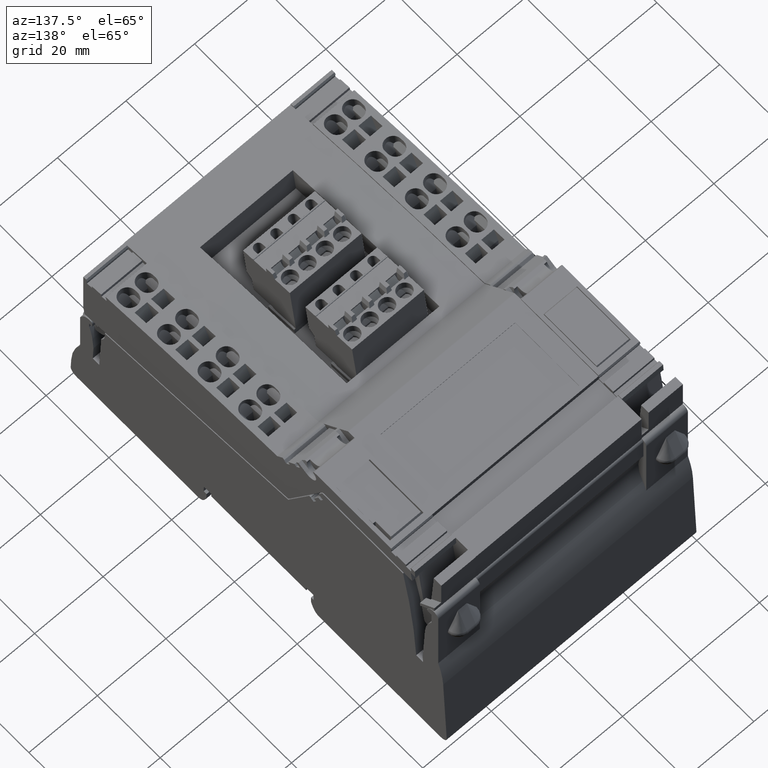
[diagram: clean part render]
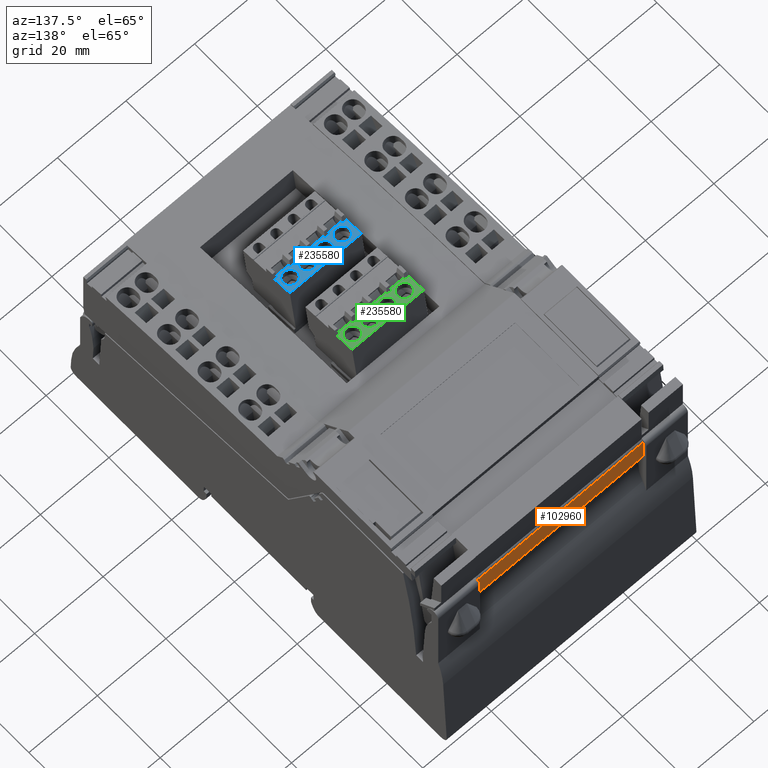
[diagram: same view with three faces highlighted in distinct colors, each labeled with its STEP entity id]
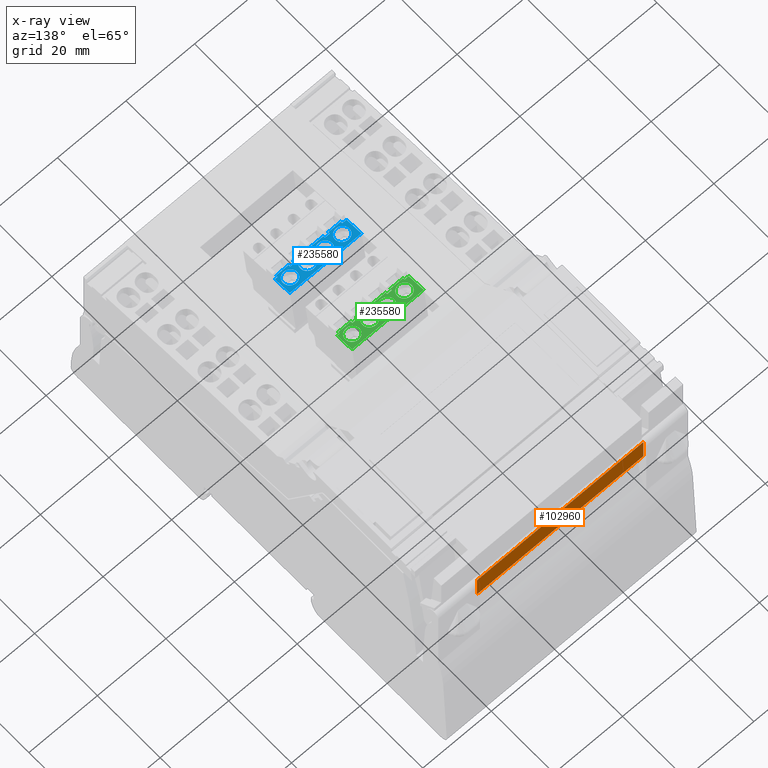
[diagram: x-ray of the same camera — body ghosted, the three highlighted faces saturated]
A machine part, auxiliary view with three faces highlighted in distinct colors.
The next image is the same camera in x-ray (body ghosted, the three faces saturated) — at least one of them is partly hidden behind the body in this view.
Their STEP definitions:

[orange] entity #102960 — the highlighted planar face has unit normal (0, 1, 0).
#18030=CARTESIAN_POINT('',(-125.591351313915,-73.4687096177443,46.8));
#18040=VERTEX_POINT('',#18030);
#18070=CARTESIAN_POINT('',(-125.591351313915,-0.0366387028802251,46.8));
#18080=DIRECTION('',(0.,1.,0.));
#18090=VECTOR('',#18080,1.);
#18100=LINE('',#18070,#18090);
#18110=CARTESIAN_POINT('',(-125.591351313915,-66.3046367892707,46.8));
#18120=VERTEX_POINT('',#18110);
#18130=EDGE_CURVE('',#18040,#18120,#18100,.T.);
#102660=CARTESIAN_POINT('',(-125.591351313915,-73.4687096177443,
-1.79999999998863));
#102670=DIRECTION('',(-1.,-4.04532634263815E-107,-1.04009420822853E-45))
;
#102680=DIRECTION('',(0.,-1.,3.88938454866321E-62));
#102690=AXIS2_PLACEMENT_3D('',#102660,#102670,#102680);
#102700=PLANE('',#102690);
#102710=CARTESIAN_POINT('',(-125.591351313915,-66.3046367892707,
46.800003));
#102720=DIRECTION('',(0.,0.,-1.));
#102730=VECTOR('',#102720,1.);
#102740=LINE('',#102710,#102730);
#102750=CARTESIAN_POINT('',(-125.591351313915,-66.3046367892707,
-1.80000000000002));
#102760=VERTEX_POINT('',#102750);
#102770=EDGE_CURVE('',#18120,#102760,#102740,.T.);
#102780=ORIENTED_EDGE('',*,*,#102770,.T.);
#102790=ORIENTED_EDGE('',*,*,#18130,.T.);
#102800=CARTESIAN_POINT('',(-125.591351313915,-73.4687096177443,
46.7999999999886));
#102810=DIRECTION('',(0.,0.,-1.));
#102820=VECTOR('',#102810,1.);
#102830=LINE('',#102800,#102820);
#102840=CARTESIAN_POINT('',(-125.591351313915,-73.4687096177443,
-1.80000000000002));
#102850=VERTEX_POINT('',#102840);
#102860=EDGE_CURVE('',#18040,#102850,#102830,.T.);
#102870=ORIENTED_EDGE('',*,*,#102860,.F.);
#102880=CARTESIAN_POINT('',(-125.591351313915,-0.0366387028802304,
-1.80000000000002));
#102890=DIRECTION('',(0.,1.,-3.88938454866321E-62));
#102900=VECTOR('',#102890,1.);
#102910=LINE('',#102880,#102900);
#102920=EDGE_CURVE('',#102850,#102760,#102910,.T.);
#102930=ORIENTED_EDGE('',*,*,#102920,.F.);
#102940=EDGE_LOOP('',(#102930,#102870,#102790,#102780));
#102950=FACE_OUTER_BOUND('',#102940,.T.);
#102960=ADVANCED_FACE('',(#102950),#102700,.T.);

[blue] entity #235580 — the highlighted planar face has unit normal (-0, -0.1279, 0.9918).
#232040=CARTESIAN_POINT('',(32.3206387993846,14.7575204980662,
5.75999999999998));
#232050=VERTEX_POINT('',#232040);
#232220=CARTESIAN_POINT('',(32.3206387993846,14.7575204980662,
4.37999999999999));
#232230=VERTEX_POINT('',#232220);
#232260=CARTESIAN_POINT('',(32.3206387993846,14.7575204980662,0.1));
#232270=DIRECTION('',(0.,0.,-1.));
#232280=VECTOR('',#232270,1.);
#232290=LINE('',#232260,#232280);
#232300=EDGE_CURVE('',#232050,#232230,#232290,.T.);
#233360=CARTESIAN_POINT('',(32.3206387993846,11.89692,15.003915));
#233370=DIRECTION('',(1.,3.5527136788005E-15,-0.));
#233380=DIRECTION('',(-3.5527136788005E-15,1.,0.));
#233390=AXIS2_PLACEMENT_3D('',#233360,#233370,#233380);
#233400=PLANE('',#233390);
#233410=CARTESIAN_POINT('',(32.3206387993846,13.5844494832834,
9.45999999999999));
#233420=DIRECTION('',(-3.5527136788005E-15,1.,0.));
#233430=VECTOR('',#233420,1.);
#233440=LINE('',#233410,#233430);
#233450=CARTESIAN_POINT('',(32.3206387993846,14.7575204980662,
9.45999999999999));
#233460=VERTEX_POINT('',#233450);
#233470=CARTESIAN_POINT('',(32.3206387993846,15.2637511150017,
9.45999999999999));
#233480=VERTEX_POINT('',#233470);
#233490=EDGE_CURVE('',#233460,#233480,#233440,.T.);
#233500=ORIENTED_EDGE('',*,*,#233490,.F.);
#233510=CARTESIAN_POINT('',(32.3206387993846,15.2637511150017,10.26));
#233520=DIRECTION('',(2.95586394818516E-46,-8.44455424549706E-32,-1.));
#233530=VECTOR('',#233520,1.);
#233540=LINE('',#233510,#233530);
#233550=CARTESIAN_POINT('',(32.3206387993846,15.2637511150017,
5.75999999999998));
#233560=VERTEX_POINT('',#233550);
#233570=EDGE_CURVE('',#233480,#233560,#233540,.T.);
#233580=ORIENTED_EDGE('',*,*,#233570,.F.);
#233590=CARTESIAN_POINT('',(32.3206387993846,13.5844494832834,
5.75999999999998));
#233600=DIRECTION('',(3.5527136788005E-15,-1.,-9.47390314346782E-16));
#233610=VECTOR('',#233600,1.);
#233620=LINE('',#233590,#233610);
#233630=EDGE_CURVE('',#233560,#232050,#233620,.T.);
#233640=ORIENTED_EDGE('',*,*,#233630,.F.);
#233650=ORIENTED_EDGE('',*,*,#232300,.F.);
#233660=CARTESIAN_POINT('',(32.3206387993846,13.5844494832834,
4.37999999999999));
#233670=DIRECTION('',(3.5527136788005E-15,-1.,0.));
#233680=VECTOR('',#233670,1.);
#233690=LINE('',#233660,#233680);
#233700=CARTESIAN_POINT('',(32.3206387993846,15.2637511150017,
4.37999999999999));
#233710=VERTEX_POINT('',#233700);
#233720=EDGE_CURVE('',#233710,#232230,#233690,.T.);
#233730=ORIENTED_EDGE('',*,*,#233720,.T.);
#233740=CARTESIAN_POINT('',(32.3206387993846,15.2637511150016,10.26));
#233750=DIRECTION('',(2.83989925879564E-29,-7.7958473003036E-15,-1.));
#233760=VECTOR('',#233750,1.);
#233770=LINE('',#233740,#233760);
#233780=CARTESIAN_POINT('',(32.3206387993846,15.2637511150017,
0.679999999999992));
#233790=VERTEX_POINT('',#233780);
#233800=EDGE_CURVE('',#233710,#233790,#233770,.T.);
#233810=ORIENTED_EDGE('',*,*,#233800,.F.);
#233820=CARTESIAN_POINT('',(32.3206387993846,13.5844494832834,
0.679999999999993));
#233830=DIRECTION('',(0.,1.,8.44455409856027E-32));
#233840=VECTOR('',#233830,1.);
#233850=LINE('',#233820,#233840);
#233860=CARTESIAN_POINT('',(32.3206387993846,14.7575204980662,
0.679999999999984));
#233870=VERTEX_POINT('',#233860);
#233880=EDGE_CURVE('',#233870,#233790,#233850,.T.);
#233890=ORIENTED_EDGE('',*,*,#233880,.T.);
#233900=CARTESIAN_POINT('',(32.3206387993846,14.7575204980662,0.1));
#233910=DIRECTION('',(0.,0.,-1.));
#233920=VECTOR('',#233910,1.);
#233930=LINE('',#233900,#233920);
#233940=CARTESIAN_POINT('',(32.3206387993846,14.7575204980662,
-0.700000000000006));
#233950=VERTEX_POINT('',#233940);
#233960=EDGE_CURVE('',#233870,#233950,#233930,.T.);
#233970=ORIENTED_EDGE('',*,*,#233960,.F.);
#233980=CARTESIAN_POINT('',(32.3206387993846,13.5844494832834,
-0.700000000000006));
#233990=DIRECTION('',(0.,-1.,0.));
#234000=VECTOR('',#233990,1.);
#234010=LINE('',#233980,#234000);
#234020=CARTESIAN_POINT('',(32.3206387993846,15.2637511150015,
-0.700000000000006));
#234030=VERTEX_POINT('',#234020);
#234040=EDGE_CURVE('',#234030,#233950,#234010,.T.);
#234050=ORIENTED_EDGE('',*,*,#234040,.T.);
#234060=CARTESIAN_POINT('',(32.3206387993846,15.2637511150017,
0.0999999999999943));
#234070=DIRECTION('',(2.95586394818516E-46,-8.44455424549706E-32,-1.));
#234080=VECTOR('',#234070,1.);
#234090=LINE('',#234060,#234080);
#234100=CARTESIAN_POINT('',(32.3206387993846,15.2637511150017,
-4.40000000000001));
#234110=VERTEX_POINT('',#234100);
#234120=EDGE_CURVE('',#234030,#234110,#234090,.T.);
#234130=ORIENTED_EDGE('',*,*,#234120,.F.);
#234140=CARTESIAN_POINT('',(32.3206387993846,13.5844494832834,
-4.40000000000001));
#234150=DIRECTION('',(0.,-1.,-8.44455409856027E-32));
#234160=VECTOR('',#234150,1.);
#234170=LINE('',#234140,#234160);
#234180=CARTESIAN_POINT('',(32.3206387993846,14.7575204980662,
-4.40000000000001));
#234190=VERTEX_POINT('',#234180);
#234200=EDGE_CURVE('',#234110,#234190,#234170,.T.);
#234210=ORIENTED_EDGE('',*,*,#234200,.F.);
#234220=CARTESIAN_POINT('',(32.3206387993846,14.7575204980662,0.1));
#234230=DIRECTION('',(0.,0.,-1.));
#234240=VECTOR('',#234230,1.);
#234250=LINE('',#234220,#234240);
#234260=CARTESIAN_POINT('',(32.3206387993846,14.7575204980662,-5.78));
#234270=VERTEX_POINT('',#234260);
#234280=EDGE_CURVE('',#234190,#234270,#234250,.T.);
#234290=ORIENTED_EDGE('',*,*,#234280,.F.);
#234300=CARTESIAN_POINT('',(32.3206387993846,13.5844494832834,-5.78));
#234310=DIRECTION('',(0.,-1.,0.));
#234320=VECTOR('',#234310,1.);
#234330=LINE('',#234300,#234320);
#234340=CARTESIAN_POINT('',(32.3206387993846,15.2637511150017,-5.78));
#234350=VERTEX_POINT('',#234340);
#234360=EDGE_CURVE('',#234350,#234270,#234330,.T.);
#234370=ORIENTED_EDGE('',*,*,#234360,.T.);
#234380=CARTESIAN_POINT('',(32.3206387993846,15.2637511150017,0.1));
#234390=DIRECTION('',(2.05051025445897E-16,-7.39557098644699E-32,-1.));
#234400=VECTOR('',#234390,1.);
#234410=LINE('',#234380,#234400);
#234420=CARTESIAN_POINT('',(32.3206387993846,15.2637511150017,-9.48));
#234430=VERTEX_POINT('',#234420);
#234440=EDGE_CURVE('',#234350,#234430,#234410,.T.);
#234450=ORIENTED_EDGE('',*,*,#234440,.F.);
#234460=CARTESIAN_POINT('',(32.3206387993846,13.5844494832834,-9.48));
#234470=DIRECTION('',(-3.5527136788005E-15,1.,9.47390314346782E-16));
#234480=VECTOR('',#234470,1.);
#234490=LINE('',#234460,#234480);
#234500=CARTESIAN_POINT('',(32.3206387993846,14.7575204980662,-9.48));
#234510=VERTEX_POINT('',#234500);
#234520=EDGE_CURVE('',#234510,#234430,#234490,.T.);
#234530=ORIENTED_EDGE('',*,*,#234520,.T.);
#234540=CARTESIAN_POINT('',(32.3206387993846,14.7575204980662,0.1));
#234550=DIRECTION('',(0.,0.,1.));
#234560=VECTOR('',#234550,1.);
#234570=LINE('',#234540,#234560);
#234580=CARTESIAN_POINT('',(32.3206387993846,14.7575204980662,-10.68));
#234590=VERTEX_POINT('',#234580);
#234600=EDGE_CURVE('',#234590,#234510,#234570,.T.);
#234610=ORIENTED_EDGE('',*,*,#234600,.T.);
#234620=CARTESIAN_POINT('',(32.3206387993846,13.5844494832834,-10.68));
#234630=DIRECTION('',(-3.5527136788005E-15,1.,0.));
#234640=VECTOR('',#234630,1.);
#234650=LINE('',#234620,#234640);
#234660=CARTESIAN_POINT('',(32.3206387993846,9.91375111500183,-10.68));
#234670=VERTEX_POINT('',#234660);
#234680=EDGE_CURVE('',#234670,#234590,#234650,.T.);
#234690=ORIENTED_EDGE('',*,*,#234680,.T.);
#234700=CARTESIAN_POINT('',(32.3206387993846,9.91375111500183,0.1));
#234710=DIRECTION('',(0.,0.,-1.));
#234720=VECTOR('',#234710,1.);
#234730=LINE('',#234700,#234720);
#234740=CARTESIAN_POINT('',(32.3206387993846,9.91375111500183,10.26));
#234750=VERTEX_POINT('',#234740);
#234760=EDGE_CURVE('',#234750,#234670,#234730,.T.);
#234770=ORIENTED_EDGE('',*,*,#234760,.T.);
#234780=CARTESIAN_POINT('',(32.3206387993846,13.5844494832834,10.26));
#234790=DIRECTION('',(3.5527136788005E-15,-1.,0.));
#234800=VECTOR('',#234790,1.);
#234810=LINE('',#234780,#234800);
#234820=CARTESIAN_POINT('',(32.3206387993846,14.7575204980662,10.26));
#234830=VERTEX_POINT('',#234820);
#234840=EDGE_CURVE('',#234830,#234750,#234810,.T.);
#234850=ORIENTED_EDGE('',*,*,#234840,.T.);
#234860=CARTESIAN_POINT('',(32.3206387993846,14.7575204980662,0.1));
#234870=DIRECTION('',(0.,0.,-1.));
#234880=VECTOR('',#234870,1.);
#234890=LINE('',#234860,#234880);
#234900=EDGE_CURVE('',#234830,#233460,#234890,.T.);
#234910=ORIENTED_EDGE('',*,*,#234900,.F.);
#234920=EDGE_LOOP('',(#234910,#234850,#234770,#234690,#234610,#234530,
#234450,#234370,#234290,#234210,#234130,#234050,#233970,#233890,#233810,
#233730,#233650,#233640,#233580,#233500));
#234930=FACE_OUTER_BOUND('',#234920,.T.);
#234940=CARTESIAN_POINT('',(32.3206387993846,12.7637511150017,-2.55));
#234950=DIRECTION('',(1.,3.5527136788005E-15,0.));
#234960=DIRECTION('',(-3.5527136788005E-15,1.,0.));
#234970=AXIS2_PLACEMENT_3D('',#234940,#234950,#234960);
#234980=CIRCLE('',#234970,2.);
#234990=CARTESIAN_POINT('',(32.3206387993846,14.7637511150017,-2.55));
#235000=VERTEX_POINT('',#234990);
#235010=CARTESIAN_POINT('',(32.3206387993846,10.7637511150017,-2.55));
#235020=VERTEX_POINT('',#235010);
#235030=EDGE_CURVE('',#235000,#235020,#234980,.T.);
#235040=ORIENTED_EDGE('',*,*,#235030,.F.);
#235050=EDGE_CURVE('',#235020,#235000,#234980,.T.);
#235060=ORIENTED_EDGE('',*,*,#235050,.F.);
#235070=EDGE_LOOP('',(#235060,#235040));
#235080=FACE_BOUND('',#235070,.T.);
#235090=CARTESIAN_POINT('',(32.3206387993846,12.7637511150017,2.53));
#235100=DIRECTION('',(1.,3.5527136788005E-15,0.));
#235110=DIRECTION('',(-3.5527136788005E-15,1.,0.));
#235120=AXIS2_PLACEMENT_3D('',#235090,#235100,#235110);
#235130=CIRCLE('',#235120,2.);
#235140=CARTESIAN_POINT('',(32.3206387993846,14.7637511150017,2.53));
#235150=VERTEX_POINT('',#235140);
#235160=CARTESIAN_POINT('',(32.3206387993846,10.7637511150017,2.53));
#235170=VERTEX_POINT('',#235160);
#235180=EDGE_CURVE('',#235150,#235170,#235130,.T.);
#235190=ORIENTED_EDGE('',*,*,#235180,.F.);
#235200=EDGE_CURVE('',#235170,#235150,#235130,.T.);
#235210=ORIENTED_EDGE('',*,*,#235200,.F.);
#235220=EDGE_LOOP('',(#235210,#235190));
#235230=FACE_BOUND('',#235220,.T.);
#235240=CARTESIAN_POINT('',(32.3206387993846,12.7637511150017,
7.60999999999999));
#235250=DIRECTION('',(1.,3.5527136788005E-15,0.));
#235260=DIRECTION('',(-3.5527136788005E-15,1.,0.));
#235270=AXIS2_PLACEMENT_3D('',#235240,#235250,#235260);
#235280=CIRCLE('',#235270,2.);
#235290=CARTESIAN_POINT('',(32.3206387993846,14.7637511150017,
7.60999999999999));
#235300=VERTEX_POINT('',#235290);
#235310=CARTESIAN_POINT('',(32.3206387993846,10.7637511150017,
7.60999999999999));
#235320=VERTEX_POINT('',#235310);
#235330=EDGE_CURVE('',#235300,#235320,#235280,.T.);
#235340=ORIENTED_EDGE('',*,*,#235330,.F.);
#235350=EDGE_CURVE('',#235320,#235300,#235280,.T.);
#235360=ORIENTED_EDGE('',*,*,#235350,.F.);
#235370=EDGE_LOOP('',(#235360,#235340));
#235380=FACE_BOUND('',#235370,.T.);
#235390=CARTESIAN_POINT('',(32.3206387993846,12.7637511150017,-7.63));
#235400=DIRECTION('',(1.,3.5527136788005E-15,0.));
#235410=DIRECTION('',(-3.5527136788005E-15,1.,0.));
#235420=AXIS2_PLACEMENT_3D('',#235390,#235400,#235410);
#235430=CIRCLE('',#235420,2.);
#235440=CARTESIAN_POINT('',(32.3206387993846,11.8660535440165,
-9.41721545177051));
#235450=VERTEX_POINT('',#235440);
#235460=CARTESIAN_POINT('',(32.3206387993846,14.7637511150017,-7.63));
#235470=VERTEX_POINT('',#235460);
#235480=EDGE_CURVE('',#235450,#235470,#235430,.T.);
#235490=ORIENTED_EDGE('',*,*,#235480,.F.);
#235500=CARTESIAN_POINT('',(32.3206387993846,10.7637511150017,-7.63));
#235510=VERTEX_POINT('',#235500);
#235520=EDGE_CURVE('',#235470,#235510,#235430,.T.);
#235530=ORIENTED_EDGE('',*,*,#235520,.F.);
#235540=EDGE_CURVE('',#235510,#235450,#235430,.T.);
#235550=ORIENTED_EDGE('',*,*,#235540,.F.);
#235560=EDGE_LOOP('',(#235550,#235530,#235490));
#235570=FACE_BOUND('',#235560,.T.);
#235580=ADVANCED_FACE('',(#234930,#235080,#235230,#235380,#235570),
#233400,.T.);

[green] entity #235580 — the highlighted planar face has unit normal (-0, -0.1279, 0.9918).
#232040=CARTESIAN_POINT('',(32.3206387993846,14.7575204980662,
5.75999999999998));
#232050=VERTEX_POINT('',#232040);
#232220=CARTESIAN_POINT('',(32.3206387993846,14.7575204980662,
4.37999999999999));
#232230=VERTEX_POINT('',#232220);
#232260=CARTESIAN_POINT('',(32.3206387993846,14.7575204980662,0.1));
#232270=DIRECTION('',(0.,0.,-1.));
#232280=VECTOR('',#232270,1.);
#232290=LINE('',#232260,#232280);
#232300=EDGE_CURVE('',#232050,#232230,#232290,.T.);
#233360=CARTESIAN_POINT('',(32.3206387993846,11.89692,15.003915));
#233370=DIRECTION('',(1.,3.5527136788005E-15,-0.));
#233380=DIRECTION('',(-3.5527136788005E-15,1.,0.));
#233390=AXIS2_PLACEMENT_3D('',#233360,#233370,#233380);
#233400=PLANE('',#233390);
#233410=CARTESIAN_POINT('',(32.3206387993846,13.5844494832834,
9.45999999999999));
#233420=DIRECTION('',(-3.5527136788005E-15,1.,0.));
#233430=VECTOR('',#233420,1.);
#233440=LINE('',#233410,#233430);
#233450=CARTESIAN_POINT('',(32.3206387993846,14.7575204980662,
9.45999999999999));
#233460=VERTEX_POINT('',#233450);
#233470=CARTESIAN_POINT('',(32.3206387993846,15.2637511150017,
9.45999999999999));
#233480=VERTEX_POINT('',#233470);
#233490=EDGE_CURVE('',#233460,#233480,#233440,.T.);
#233500=ORIENTED_EDGE('',*,*,#233490,.F.);
#233510=CARTESIAN_POINT('',(32.3206387993846,15.2637511150017,10.26));
#233520=DIRECTION('',(2.95586394818516E-46,-8.44455424549706E-32,-1.));
#233530=VECTOR('',#233520,1.);
#233540=LINE('',#233510,#233530);
#233550=CARTESIAN_POINT('',(32.3206387993846,15.2637511150017,
5.75999999999998));
#233560=VERTEX_POINT('',#233550);
#233570=EDGE_CURVE('',#233480,#233560,#233540,.T.);
#233580=ORIENTED_EDGE('',*,*,#233570,.F.);
#233590=CARTESIAN_POINT('',(32.3206387993846,13.5844494832834,
5.75999999999998));
#233600=DIRECTION('',(3.5527136788005E-15,-1.,-9.47390314346782E-16));
#233610=VECTOR('',#233600,1.);
#233620=LINE('',#233590,#233610);
#233630=EDGE_CURVE('',#233560,#232050,#233620,.T.);
#233640=ORIENTED_EDGE('',*,*,#233630,.F.);
#233650=ORIENTED_EDGE('',*,*,#232300,.F.);
#233660=CARTESIAN_POINT('',(32.3206387993846,13.5844494832834,
4.37999999999999));
#233670=DIRECTION('',(3.5527136788005E-15,-1.,0.));
#233680=VECTOR('',#233670,1.);
#233690=LINE('',#233660,#233680);
#233700=CARTESIAN_POINT('',(32.3206387993846,15.2637511150017,
4.37999999999999));
#233710=VERTEX_POINT('',#233700);
#233720=EDGE_CURVE('',#233710,#232230,#233690,.T.);
#233730=ORIENTED_EDGE('',*,*,#233720,.T.);
#233740=CARTESIAN_POINT('',(32.3206387993846,15.2637511150016,10.26));
#233750=DIRECTION('',(2.83989925879564E-29,-7.7958473003036E-15,-1.));
#233760=VECTOR('',#233750,1.);
#233770=LINE('',#233740,#233760);
#233780=CARTESIAN_POINT('',(32.3206387993846,15.2637511150017,
0.679999999999992));
#233790=VERTEX_POINT('',#233780);
#233800=EDGE_CURVE('',#233710,#233790,#233770,.T.);
#233810=ORIENTED_EDGE('',*,*,#233800,.F.);
#233820=CARTESIAN_POINT('',(32.3206387993846,13.5844494832834,
0.679999999999993));
#233830=DIRECTION('',(0.,1.,8.44455409856027E-32));
#233840=VECTOR('',#233830,1.);
#233850=LINE('',#233820,#233840);
#233860=CARTESIAN_POINT('',(32.3206387993846,14.7575204980662,
0.679999999999984));
#233870=VERTEX_POINT('',#233860);
#233880=EDGE_CURVE('',#233870,#233790,#233850,.T.);
#233890=ORIENTED_EDGE('',*,*,#233880,.T.);
#233900=CARTESIAN_POINT('',(32.3206387993846,14.7575204980662,0.1));
#233910=DIRECTION('',(0.,0.,-1.));
#233920=VECTOR('',#233910,1.);
#233930=LINE('',#233900,#233920);
#233940=CARTESIAN_POINT('',(32.3206387993846,14.7575204980662,
-0.700000000000006));
#233950=VERTEX_POINT('',#233940);
#233960=EDGE_CURVE('',#233870,#233950,#233930,.T.);
#233970=ORIENTED_EDGE('',*,*,#233960,.F.);
#233980=CARTESIAN_POINT('',(32.3206387993846,13.5844494832834,
-0.700000000000006));
#233990=DIRECTION('',(0.,-1.,0.));
#234000=VECTOR('',#233990,1.);
#234010=LINE('',#233980,#234000);
#234020=CARTESIAN_POINT('',(32.3206387993846,15.2637511150015,
-0.700000000000006));
#234030=VERTEX_POINT('',#234020);
#234040=EDGE_CURVE('',#234030,#233950,#234010,.T.);
#234050=ORIENTED_EDGE('',*,*,#234040,.T.);
#234060=CARTESIAN_POINT('',(32.3206387993846,15.2637511150017,
0.0999999999999943));
#234070=DIRECTION('',(2.95586394818516E-46,-8.44455424549706E-32,-1.));
#234080=VECTOR('',#234070,1.);
#234090=LINE('',#234060,#234080);
#234100=CARTESIAN_POINT('',(32.3206387993846,15.2637511150017,
-4.40000000000001));
#234110=VERTEX_POINT('',#234100);
#234120=EDGE_CURVE('',#234030,#234110,#234090,.T.);
#234130=ORIENTED_EDGE('',*,*,#234120,.F.);
#234140=CARTESIAN_POINT('',(32.3206387993846,13.5844494832834,
-4.40000000000001));
#234150=DIRECTION('',(0.,-1.,-8.44455409856027E-32));
#234160=VECTOR('',#234150,1.);
#234170=LINE('',#234140,#234160);
#234180=CARTESIAN_POINT('',(32.3206387993846,14.7575204980662,
-4.40000000000001));
#234190=VERTEX_POINT('',#234180);
#234200=EDGE_CURVE('',#234110,#234190,#234170,.T.);
#234210=ORIENTED_EDGE('',*,*,#234200,.F.);
#234220=CARTESIAN_POINT('',(32.3206387993846,14.7575204980662,0.1));
#234230=DIRECTION('',(0.,0.,-1.));
#234240=VECTOR('',#234230,1.);
#234250=LINE('',#234220,#234240);
#234260=CARTESIAN_POINT('',(32.3206387993846,14.7575204980662,-5.78));
#234270=VERTEX_POINT('',#234260);
#234280=EDGE_CURVE('',#234190,#234270,#234250,.T.);
#234290=ORIENTED_EDGE('',*,*,#234280,.F.);
#234300=CARTESIAN_POINT('',(32.3206387993846,13.5844494832834,-5.78));
#234310=DIRECTION('',(0.,-1.,0.));
#234320=VECTOR('',#234310,1.);
#234330=LINE('',#234300,#234320);
#234340=CARTESIAN_POINT('',(32.3206387993846,15.2637511150017,-5.78));
#234350=VERTEX_POINT('',#234340);
#234360=EDGE_CURVE('',#234350,#234270,#234330,.T.);
#234370=ORIENTED_EDGE('',*,*,#234360,.T.);
#234380=CARTESIAN_POINT('',(32.3206387993846,15.2637511150017,0.1));
#234390=DIRECTION('',(2.05051025445897E-16,-7.39557098644699E-32,-1.));
#234400=VECTOR('',#234390,1.);
#234410=LINE('',#234380,#234400);
#234420=CARTESIAN_POINT('',(32.3206387993846,15.2637511150017,-9.48));
#234430=VERTEX_POINT('',#234420);
#234440=EDGE_CURVE('',#234350,#234430,#234410,.T.);
#234450=ORIENTED_EDGE('',*,*,#234440,.F.);
#234460=CARTESIAN_POINT('',(32.3206387993846,13.5844494832834,-9.48));
#234470=DIRECTION('',(-3.5527136788005E-15,1.,9.47390314346782E-16));
#234480=VECTOR('',#234470,1.);
#234490=LINE('',#234460,#234480);
#234500=CARTESIAN_POINT('',(32.3206387993846,14.7575204980662,-9.48));
#234510=VERTEX_POINT('',#234500);
#234520=EDGE_CURVE('',#234510,#234430,#234490,.T.);
#234530=ORIENTED_EDGE('',*,*,#234520,.T.);
#234540=CARTESIAN_POINT('',(32.3206387993846,14.7575204980662,0.1));
#234550=DIRECTION('',(0.,0.,1.));
#234560=VECTOR('',#234550,1.);
#234570=LINE('',#234540,#234560);
#234580=CARTESIAN_POINT('',(32.3206387993846,14.7575204980662,-10.68));
#234590=VERTEX_POINT('',#234580);
#234600=EDGE_CURVE('',#234590,#234510,#234570,.T.);
#234610=ORIENTED_EDGE('',*,*,#234600,.T.);
#234620=CARTESIAN_POINT('',(32.3206387993846,13.5844494832834,-10.68));
#234630=DIRECTION('',(-3.5527136788005E-15,1.,0.));
#234640=VECTOR('',#234630,1.);
#234650=LINE('',#234620,#234640);
#234660=CARTESIAN_POINT('',(32.3206387993846,9.91375111500183,-10.68));
#234670=VERTEX_POINT('',#234660);
#234680=EDGE_CURVE('',#234670,#234590,#234650,.T.);
#234690=ORIENTED_EDGE('',*,*,#234680,.T.);
#234700=CARTESIAN_POINT('',(32.3206387993846,9.91375111500183,0.1));
#234710=DIRECTION('',(0.,0.,-1.));
#234720=VECTOR('',#234710,1.);
#234730=LINE('',#234700,#234720);
#234740=CARTESIAN_POINT('',(32.3206387993846,9.91375111500183,10.26));
#234750=VERTEX_POINT('',#234740);
#234760=EDGE_CURVE('',#234750,#234670,#234730,.T.);
#234770=ORIENTED_EDGE('',*,*,#234760,.T.);
#234780=CARTESIAN_POINT('',(32.3206387993846,13.5844494832834,10.26));
#234790=DIRECTION('',(3.5527136788005E-15,-1.,0.));
#234800=VECTOR('',#234790,1.);
#234810=LINE('',#234780,#234800);
#234820=CARTESIAN_POINT('',(32.3206387993846,14.7575204980662,10.26));
#234830=VERTEX_POINT('',#234820);
#234840=EDGE_CURVE('',#234830,#234750,#234810,.T.);
#234850=ORIENTED_EDGE('',*,*,#234840,.T.);
#234860=CARTESIAN_POINT('',(32.3206387993846,14.7575204980662,0.1));
#234870=DIRECTION('',(0.,0.,-1.));
#234880=VECTOR('',#234870,1.);
#234890=LINE('',#234860,#234880);
#234900=EDGE_CURVE('',#234830,#233460,#234890,.T.);
#234910=ORIENTED_EDGE('',*,*,#234900,.F.);
#234920=EDGE_LOOP('',(#234910,#234850,#234770,#234690,#234610,#234530,
#234450,#234370,#234290,#234210,#234130,#234050,#233970,#233890,#233810,
#233730,#233650,#233640,#233580,#233500));
#234930=FACE_OUTER_BOUND('',#234920,.T.);
#234940=CARTESIAN_POINT('',(32.3206387993846,12.7637511150017,-2.55));
#234950=DIRECTION('',(1.,3.5527136788005E-15,0.));
#234960=DIRECTION('',(-3.5527136788005E-15,1.,0.));
#234970=AXIS2_PLACEMENT_3D('',#234940,#234950,#234960);
#234980=CIRCLE('',#234970,2.);
#234990=CARTESIAN_POINT('',(32.3206387993846,14.7637511150017,-2.55));
#235000=VERTEX_POINT('',#234990);
#235010=CARTESIAN_POINT('',(32.3206387993846,10.7637511150017,-2.55));
#235020=VERTEX_POINT('',#235010);
#235030=EDGE_CURVE('',#235000,#235020,#234980,.T.);
#235040=ORIENTED_EDGE('',*,*,#235030,.F.);
#235050=EDGE_CURVE('',#235020,#235000,#234980,.T.);
#235060=ORIENTED_EDGE('',*,*,#235050,.F.);
#235070=EDGE_LOOP('',(#235060,#235040));
#235080=FACE_BOUND('',#235070,.T.);
#235090=CARTESIAN_POINT('',(32.3206387993846,12.7637511150017,2.53));
#235100=DIRECTION('',(1.,3.5527136788005E-15,0.));
#235110=DIRECTION('',(-3.5527136788005E-15,1.,0.));
#235120=AXIS2_PLACEMENT_3D('',#235090,#235100,#235110);
#235130=CIRCLE('',#235120,2.);
#235140=CARTESIAN_POINT('',(32.3206387993846,14.7637511150017,2.53));
#235150=VERTEX_POINT('',#235140);
#235160=CARTESIAN_POINT('',(32.3206387993846,10.7637511150017,2.53));
#235170=VERTEX_POINT('',#235160);
#235180=EDGE_CURVE('',#235150,#235170,#235130,.T.);
#235190=ORIENTED_EDGE('',*,*,#235180,.F.);
#235200=EDGE_CURVE('',#235170,#235150,#235130,.T.);
#235210=ORIENTED_EDGE('',*,*,#235200,.F.);
#235220=EDGE_LOOP('',(#235210,#235190));
#235230=FACE_BOUND('',#235220,.T.);
#235240=CARTESIAN_POINT('',(32.3206387993846,12.7637511150017,
7.60999999999999));
#235250=DIRECTION('',(1.,3.5527136788005E-15,0.));
#235260=DIRECTION('',(-3.5527136788005E-15,1.,0.));
#235270=AXIS2_PLACEMENT_3D('',#235240,#235250,#235260);
#235280=CIRCLE('',#235270,2.);
#235290=CARTESIAN_POINT('',(32.3206387993846,14.7637511150017,
7.60999999999999));
#235300=VERTEX_POINT('',#235290);
#235310=CARTESIAN_POINT('',(32.3206387993846,10.7637511150017,
7.60999999999999));
#235320=VERTEX_POINT('',#235310);
#235330=EDGE_CURVE('',#235300,#235320,#235280,.T.);
#235340=ORIENTED_EDGE('',*,*,#235330,.F.);
#235350=EDGE_CURVE('',#235320,#235300,#235280,.T.);
#235360=ORIENTED_EDGE('',*,*,#235350,.F.);
#235370=EDGE_LOOP('',(#235360,#235340));
#235380=FACE_BOUND('',#235370,.T.);
#235390=CARTESIAN_POINT('',(32.3206387993846,12.7637511150017,-7.63));
#235400=DIRECTION('',(1.,3.5527136788005E-15,0.));
#235410=DIRECTION('',(-3.5527136788005E-15,1.,0.));
#235420=AXIS2_PLACEMENT_3D('',#235390,#235400,#235410);
#235430=CIRCLE('',#235420,2.);
#235440=CARTESIAN_POINT('',(32.3206387993846,11.8660535440165,
-9.41721545177051));
#235450=VERTEX_POINT('',#235440);
#235460=CARTESIAN_POINT('',(32.3206387993846,14.7637511150017,-7.63));
#235470=VERTEX_POINT('',#235460);
#235480=EDGE_CURVE('',#235450,#235470,#235430,.T.);
#235490=ORIENTED_EDGE('',*,*,#235480,.F.);
#235500=CARTESIAN_POINT('',(32.3206387993846,10.7637511150017,-7.63));
#235510=VERTEX_POINT('',#235500);
#235520=EDGE_CURVE('',#235470,#235510,#235430,.T.);
#235530=ORIENTED_EDGE('',*,*,#235520,.F.);
#235540=EDGE_CURVE('',#235510,#235450,#235430,.T.);
#235550=ORIENTED_EDGE('',*,*,#235540,.F.);
#235560=EDGE_LOOP('',(#235550,#235530,#235490));
#235570=FACE_BOUND('',#235560,.T.);
#235580=ADVANCED_FACE('',(#234930,#235080,#235230,#235380,#235570),
#233400,.T.);